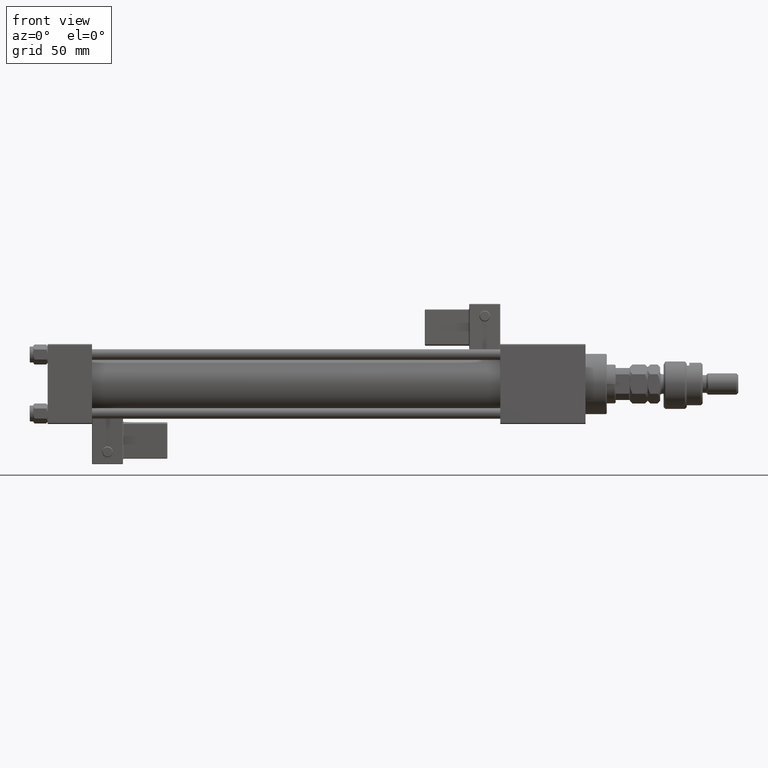
[diagram: clean part render]
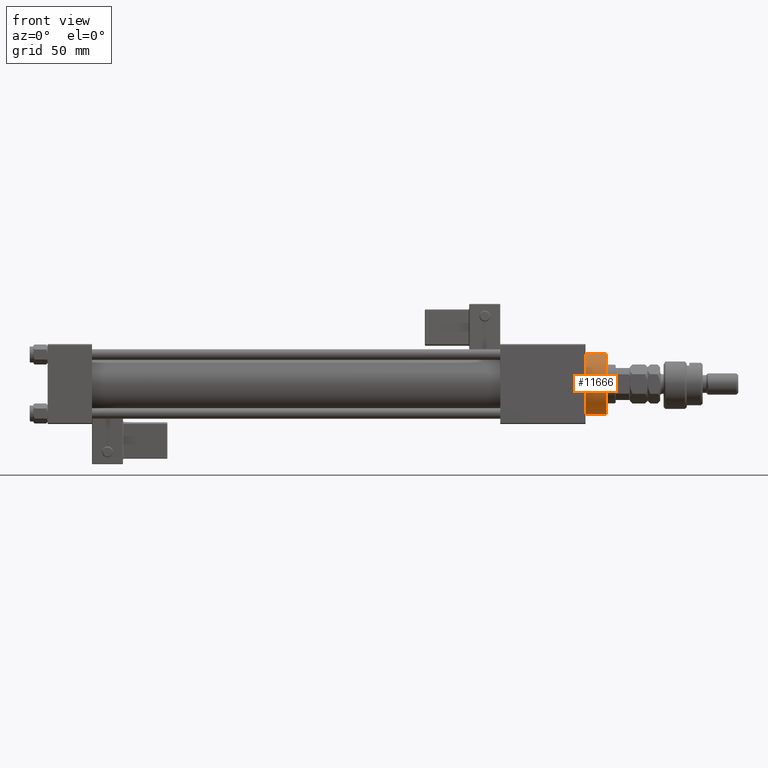
[diagram: same view with one face highlighted and labeled with its STEP entity id]
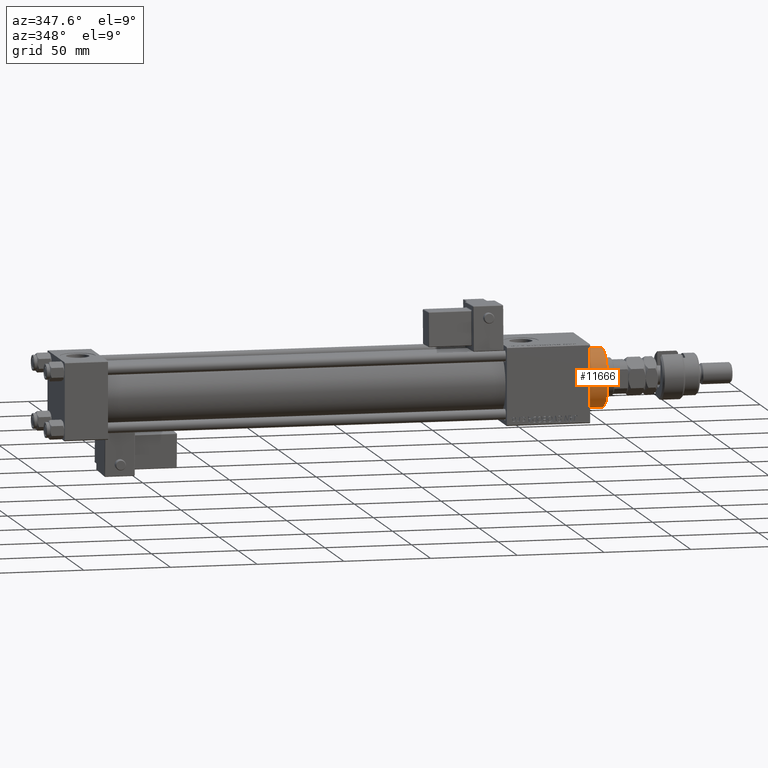
[diagram: same view with one face highlighted and labeled with its STEP entity id]
A machine part, front view. The second image highlights one B-rep face of the part: STEP entity #11666.
A second angle (auxiliary view) of the same face is appended — the face is thin or edge-on in the first view.
In plain terms, the highlighted cylindrical surface (edge-blend (fillet) strip) has radius 17 mm, axis along (-1, -0, -0).
Its self-contained STEP definition (entity closure, byte-faithful):
#126 = ORIENTED_EDGE ( 'NONE', *, *, #48935, .T. ) ;
#4827 = EDGE_LOOP ( 'NONE', ( #32190, #126, #55393, #30120 ) ) ;
#6817 = DIRECTION ( 'NONE',  ( -0.000000000000000000, -0.000000000000000000, -1.000000000000000000 ) ) ;
#8609 = CIRCLE ( 'NONE', #11354, 17.00000000000000000 ) ;
#9393 = CARTESIAN_POINT ( 'NONE',  ( 17.00000000000000000, 2.081899558550500280E-15, 40.19999999999999574 ) ) ;
#9407 = CARTESIAN_POINT ( 'NONE',  ( -17.00000000000000000, 0.000000000000000000, 28.69999999999999929 ) ) ;
#9951 = CARTESIAN_POINT ( 'NONE',  ( 0.000000000000000000, 0.000000000000000000, 40.19999999999999574 ) ) ;
#11036 = CIRCLE ( 'NONE', #13730, 17.00000000000000000 ) ;
#11354 = AXIS2_PLACEMENT_3D ( 'NONE', #9951, #31273, #30706 ) ;
#11666 = ADVANCED_FACE ( 'NONE', ( #45214 ), #19438, .T. ) ;
#13730 = AXIS2_PLACEMENT_3D ( 'NONE', #42816, #47017, #29657 ) ;
#14801 = DIRECTION ( 'NONE',  ( -0.000000000000000000, -0.000000000000000000, -1.000000000000000000 ) ) ;
#15636 = DIRECTION ( 'NONE',  ( -0.000000000000000000, -0.000000000000000000, -1.000000000000000000 ) ) ;
#19438 = CYLINDRICAL_SURFACE ( 'NONE', #29164, 17.00000000000000000 ) ;
#20587 = VERTEX_POINT ( 'NONE', #9407 ) ;
#22294 = EDGE_CURVE ( 'NONE', #26923, #20587, #22660, .T. ) ;
#22660 = LINE ( 'NONE', #48999, #49806 ) ;
#23359 = VERTEX_POINT ( 'NONE', #42257 ) ;
#23925 = DIRECTION ( 'NONE',  ( -1.000000000000000000, 0.000000000000000000, 0.000000000000000000 ) ) ;
#24198 = CARTESIAN_POINT ( 'NONE',  ( 0.000000000000000000, 0.000000000000000000, 40.70000000000000284 ) ) ;
#26923 = VERTEX_POINT ( 'NONE', #45098 ) ;
#29164 = AXIS2_PLACEMENT_3D ( 'NONE', #24198, #6817, #23925 ) ;
#29657 = DIRECTION ( 'NONE',  ( 1.000000000000000000, 0.000000000000000000, 0.000000000000000000 ) ) ;
#30120 = ORIENTED_EDGE ( 'NONE', *, *, #40098, .T. ) ;
#30706 = DIRECTION ( 'NONE',  ( 1.000000000000000000, 0.000000000000000000, 0.000000000000000000 ) ) ;
#31273 = DIRECTION ( 'NONE',  ( 0.000000000000000000, 0.000000000000000000, -1.000000000000000000 ) ) ;
#32190 = ORIENTED_EDGE ( 'NONE', *, *, #35504, .F. ) ;
#32744 = LINE ( 'NONE', #41700, #34116 ) ;
#32867 = VERTEX_POINT ( 'NONE', #9393 ) ;
#34116 = VECTOR ( 'NONE', #15636, 1000.000000000000000 ) ;
#35504 = EDGE_CURVE ( 'NONE', #32867, #23359, #32744, .T. ) ;
#40098 = EDGE_CURVE ( 'NONE', #20587, #23359, #11036, .T. ) ;
#41700 = CARTESIAN_POINT ( 'NONE',  ( 17.00000000000000000, 2.081899558550500280E-15, 40.70000000000000284 ) ) ;
#42257 = CARTESIAN_POINT ( 'NONE',  ( 17.00000000000000000, 2.081899558550500280E-15, 28.69999999999999929 ) ) ;
#42816 = CARTESIAN_POINT ( 'NONE',  ( 0.000000000000000000, 0.000000000000000000, 28.69999999999999929 ) ) ;
#45098 = CARTESIAN_POINT ( 'NONE',  ( -17.00000000000000000, 0.000000000000000000, 40.19999999999999574 ) ) ;
#45214 = FACE_OUTER_BOUND ( 'NONE', #4827, .T. ) ;
#47017 = DIRECTION ( 'NONE',  ( 0.000000000000000000, 0.000000000000000000, 1.000000000000000000 ) ) ;
#48935 = EDGE_CURVE ( 'NONE', #32867, #26923, #8609, .T. ) ;
#48999 = CARTESIAN_POINT ( 'NONE',  ( -17.00000000000000000, 0.000000000000000000, 40.70000000000000284 ) ) ;
#49806 = VECTOR ( 'NONE', #14801, 1000.000000000000000 ) ;
#55393 = ORIENTED_EDGE ( 'NONE', *, *, #22294, .T. ) ;